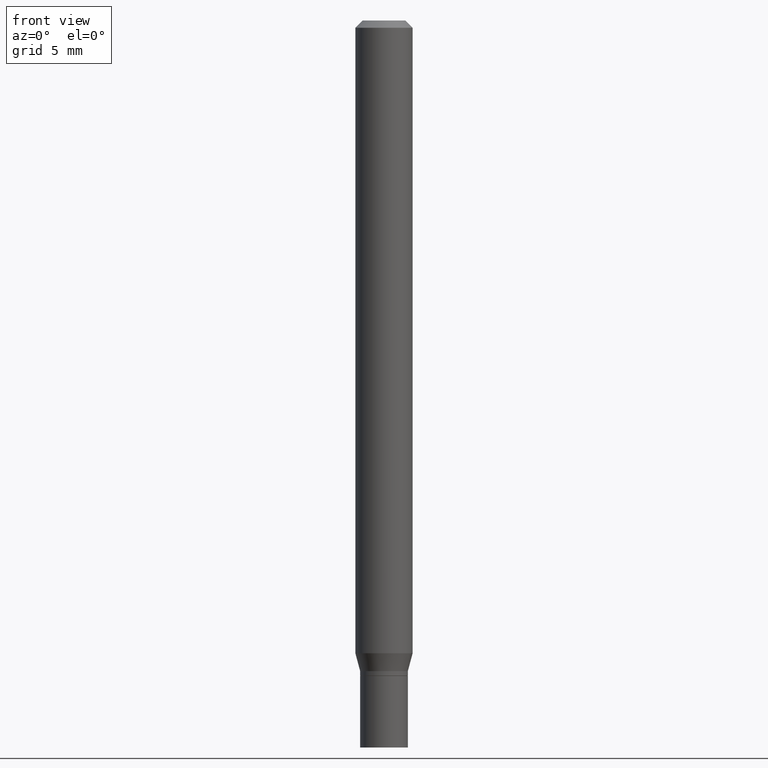
[diagram: clean part render]
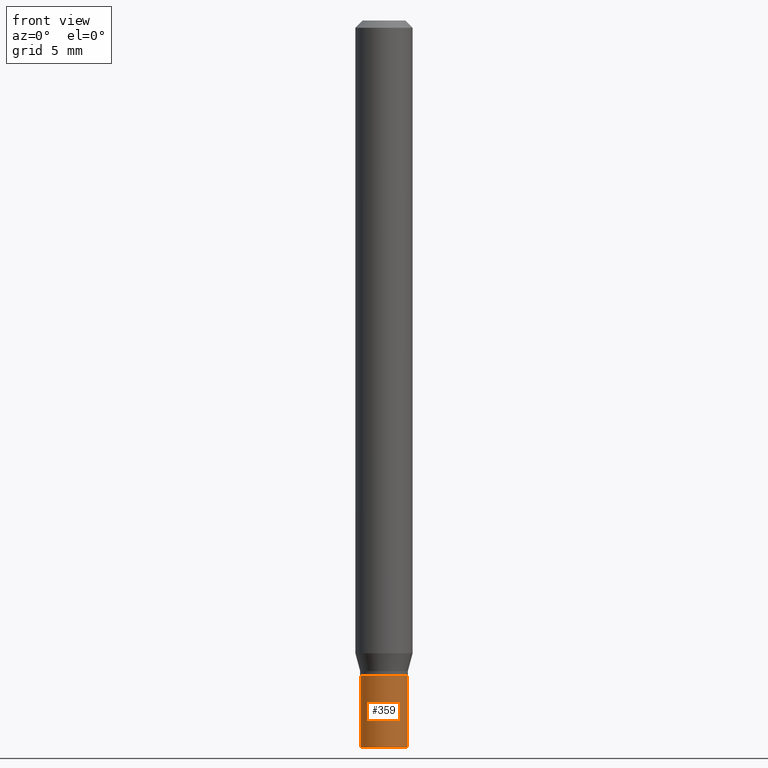
[diagram: same view with one face highlighted and labeled with its STEP entity id]
A machine part, front view. The second image highlights one B-rep face of the part: STEP entity #359.
In plain terms, the highlighted cylindrical surface (edge-blend (fillet) strip) has radius 1.2497 mm, axis along (-0, 0, 1).
Its self-contained STEP definition (entity closure, byte-faithful):
#35 = EDGE_CURVE ( 'NONE', #443, #134, #213, .T. ) ;
#36 = CIRCLE ( 'NONE', #438, 0.04920000000000000068 ) ;
#37 = AXIS2_PLACEMENT_3D ( 'NONE', #194, #51, #350 ) ;
#49 = DIRECTION ( 'NONE',  ( -2.445468806185136597E-29, 3.491481338843145583E-15, 1.000000000000000000 ) ) ;
#51 = DIRECTION ( 'NONE',  ( -2.445468806185136597E-29, 3.491481338843145583E-15, 1.000000000000000000 ) ) ;
#60 = LINE ( 'NONE', #207, #465 ) ;
#73 = DIRECTION ( 'NONE',  ( -2.445468806185136597E-29, 3.491481338843145583E-15, 1.000000000000000000 ) ) ;
#77 = VERTEX_POINT ( 'NONE', #128 ) ;
#87 = CARTESIAN_POINT ( 'NONE',  ( -0.04920000000000000068, -4.629963659464125339E-15, -1.500000000000000222 ) ) ;
#94 = DIRECTION ( 'NONE',  ( 1.000000000000000000, -6.982962677686266711E-15, 4.876176775795935793E-29 ) ) ;
#128 = CARTESIAN_POINT ( 'NONE',  ( 0.04920000000000000068, -5.580783772006882701E-15, -1.500000000000000222 ) ) ;
#129 = CARTESIAN_POINT ( 'NONE',  ( 0.04920000000000000068, -5.065441126393634337E-15, -1.352400000000000047 ) ) ;
#134 = VERTEX_POINT ( 'NONE', #163 ) ;
#163 = CARTESIAN_POINT ( 'NONE',  ( -0.04920000000000000068, -4.629963659464125339E-15, -1.352400000000000047 ) ) ;
#173 = DIRECTION ( 'NONE',  ( -2.445468806185136877E-29, 3.491481338843145188E-15, 1.000000000000000000 ) ) ;
#179 = ORIENTED_EDGE ( 'NONE', *, *, #343, .T. ) ;
#190 = CIRCLE ( 'NONE', #37, 0.04920000000000000068 ) ;
#194 = CARTESIAN_POINT ( 'NONE',  ( 3.668203209277704895E-29, -5.237222008264718177E-15, -1.500000000000000222 ) ) ;
#207 = CARTESIAN_POINT ( 'NONE',  ( 0.04920000000000000068, -3.435617637421643269E-16, 2.399078973691600472E-30 ) ) ;
#213 = LINE ( 'NONE', #288, #407 ) ;
#220 = EDGE_LOOP ( 'NONE', ( #227, #179, #354, #237 ) ) ;
#227 = ORIENTED_EDGE ( 'NONE', *, *, #35, .F. ) ;
#237 = ORIENTED_EDGE ( 'NONE', *, *, #275, .F. ) ;
#243 = EDGE_CURVE ( 'NONE', #77, #346, #60, .T. ) ;
#245 = DIRECTION ( 'NONE',  ( -2.445468806185136877E-29, 3.491481338843145188E-15, 1.000000000000000000 ) ) ;
#250 = CARTESIAN_POINT ( 'NONE',  ( 3.307252013484778620E-29, -4.721879362651470602E-15, -1.352400000000000047 ) ) ;
#275 = EDGE_CURVE ( 'NONE', #134, #346, #36, .T. ) ;
#288 = CARTESIAN_POINT ( 'NONE',  ( -0.04920000000000000068, 3.495870259939692963E-16, -2.420116064405413767E-30 ) ) ;
#316 = AXIS2_PLACEMENT_3D ( 'NONE', #385, #49, #94 ) ;
#329 = DIRECTION ( 'NONE',  ( 1.000000000000000000, -6.982962677686261977E-15, 0.000000000000000000 ) ) ;
#343 = EDGE_CURVE ( 'NONE', #443, #77, #190, .T. ) ;
#346 = VERTEX_POINT ( 'NONE', #129 ) ;
#350 = DIRECTION ( 'NONE',  ( 1.000000000000000000, -6.982962677686261977E-15, 0.000000000000000000 ) ) ;
#354 = ORIENTED_EDGE ( 'NONE', *, *, #243, .T. ) ;
#359 = ADVANCED_FACE ( 'NONE', ( #416 ), #383, .T. ) ;
#383 = CYLINDRICAL_SURFACE ( 'NONE', #316, 0.04920000000000000068 ) ;
#385 = CARTESIAN_POINT ( 'NONE',  ( 0.000000000000000000, 0.000000000000000000, 0.000000000000000000 ) ) ;
#407 = VECTOR ( 'NONE', #173, 39.37007874015748143 ) ;
#416 = FACE_OUTER_BOUND ( 'NONE', #220, .T. ) ;
#438 = AXIS2_PLACEMENT_3D ( 'NONE', #250, #73, #329 ) ;
#443 = VERTEX_POINT ( 'NONE', #87 ) ;
#465 = VECTOR ( 'NONE', #245, 39.37007874015748143 ) ;